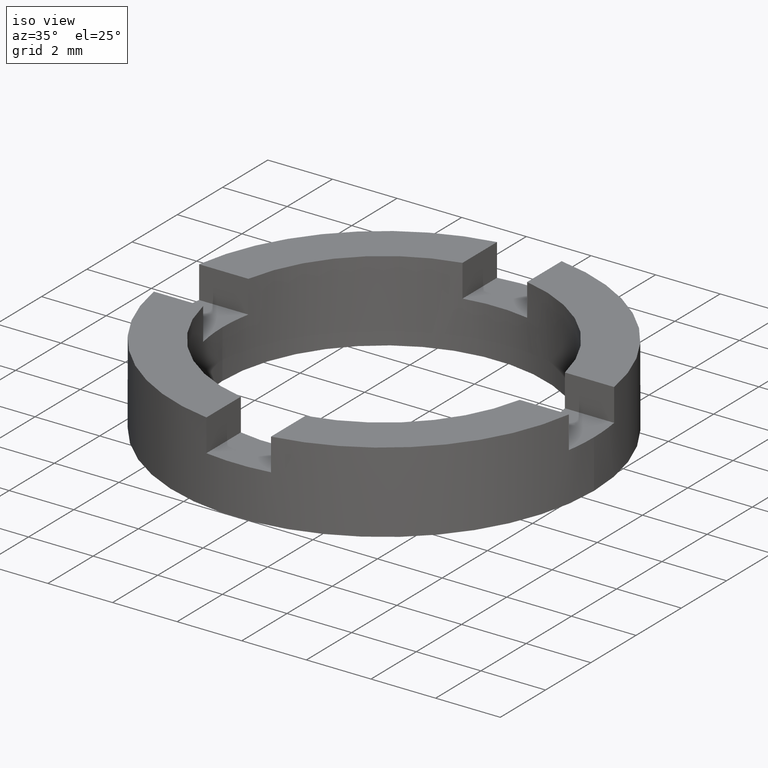
[diagram: clean part render]
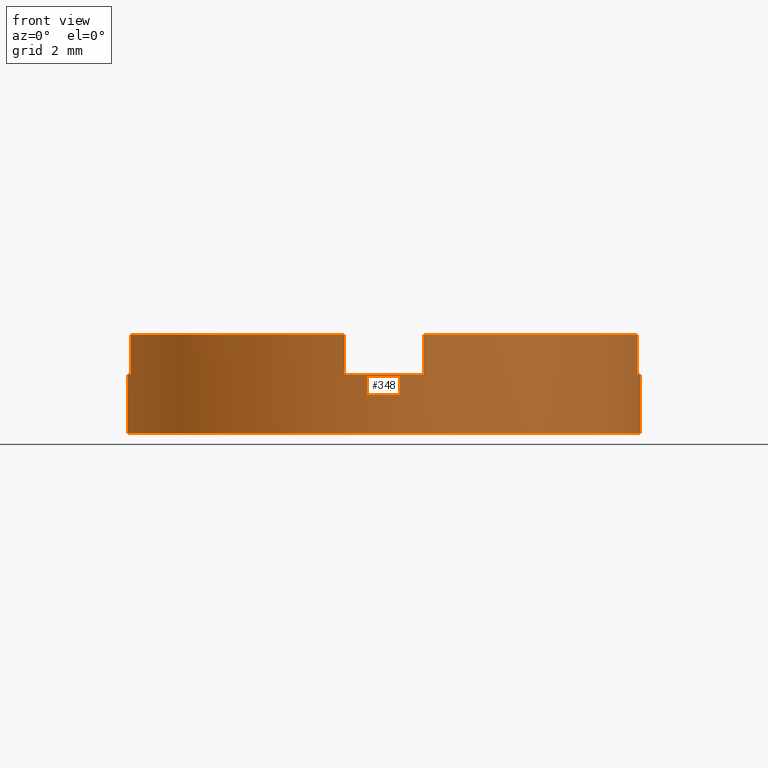
[diagram: tour spotlight — one face highlighted and labeled with its STEP entity id]
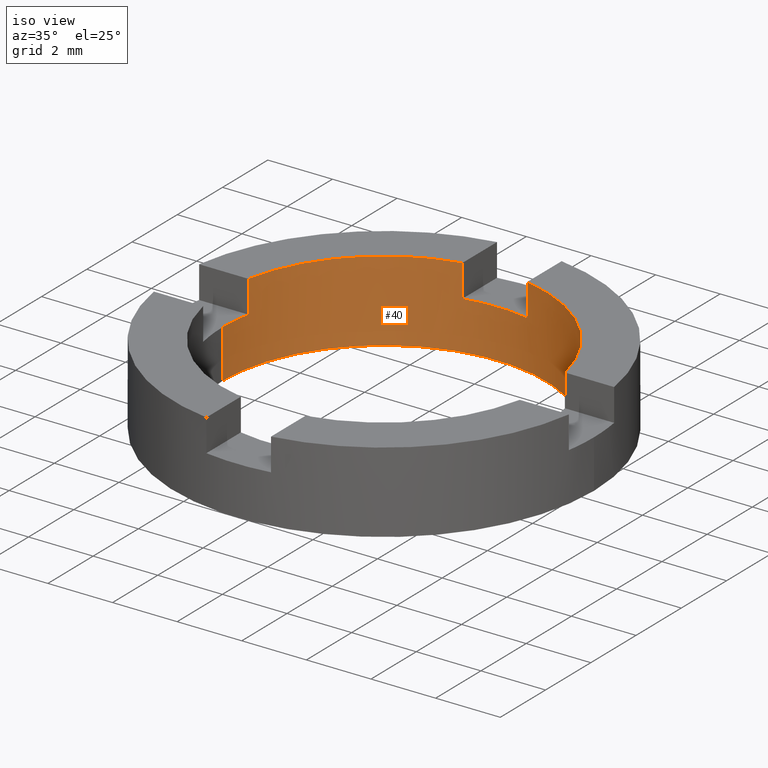
[diagram: tour spotlight — one face highlighted and labeled with its STEP entity id]
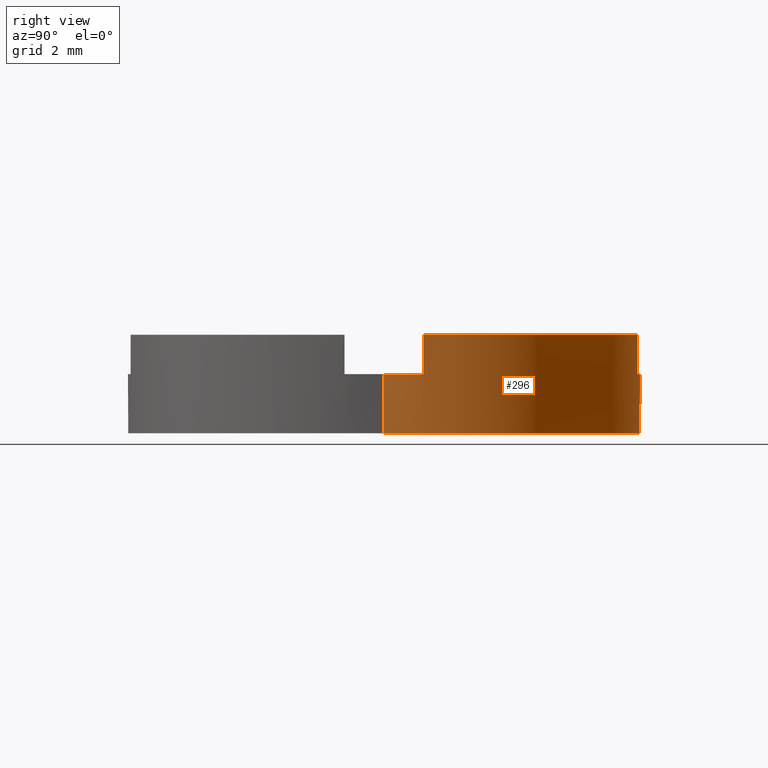
[diagram: tour spotlight — one face highlighted and labeled with its STEP entity id]
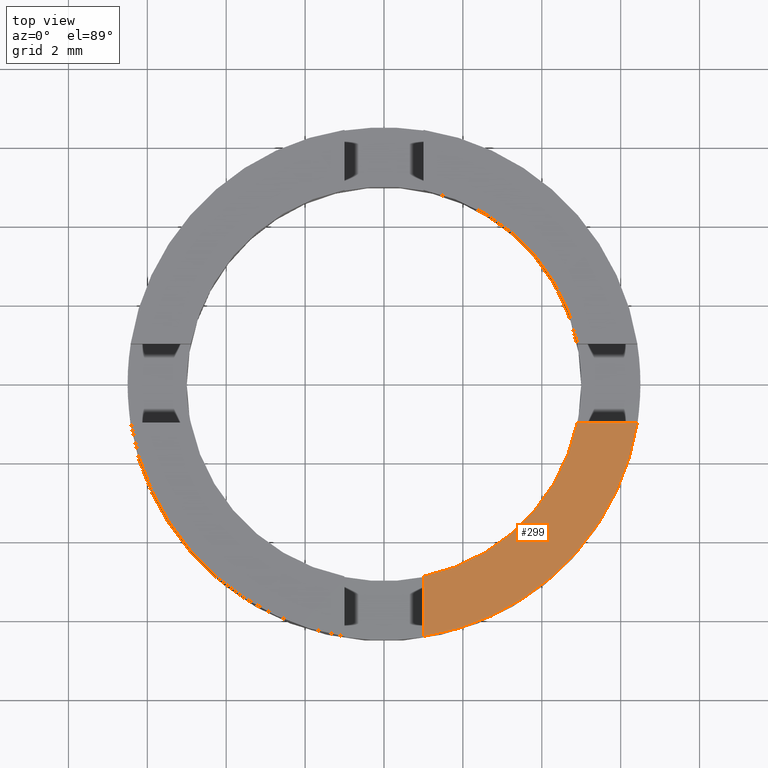
[diagram: tour spotlight — one face highlighted and labeled with its STEP entity id]
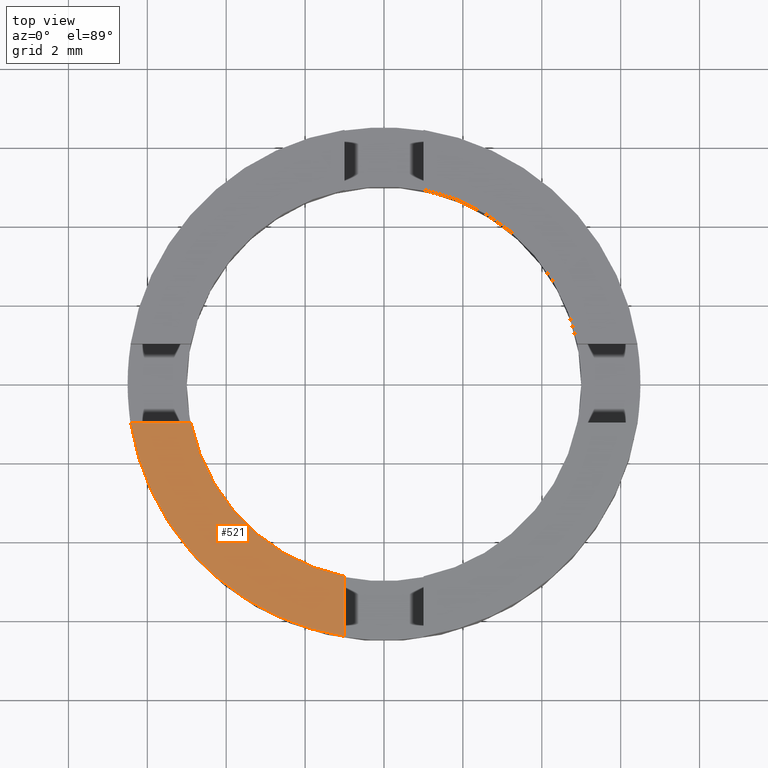
[diagram: tour spotlight — one face highlighted and labeled with its STEP entity id]
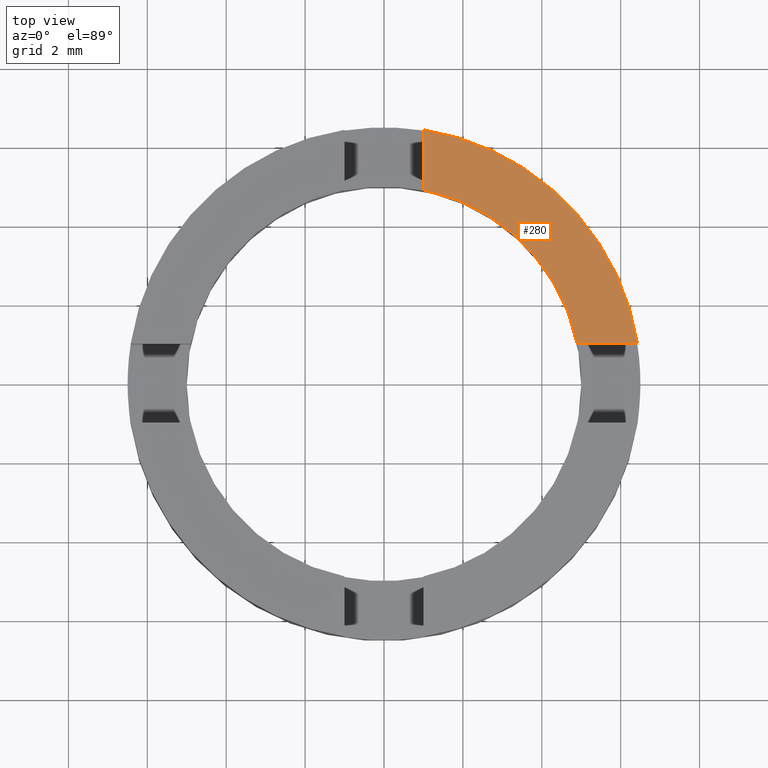
[diagram: tour spotlight — one face highlighted and labeled with its STEP entity id]
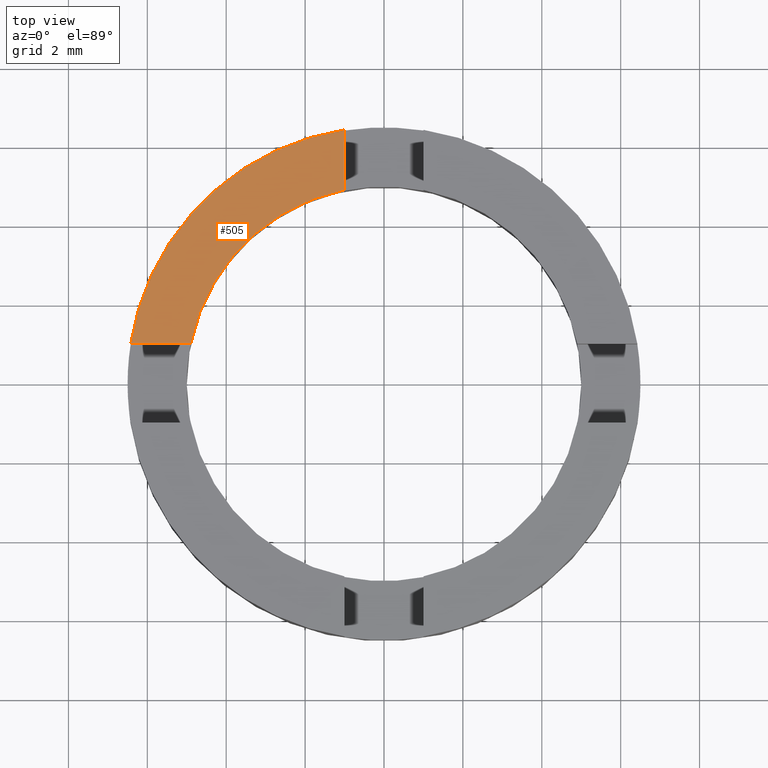
[diagram: tour spotlight — one face highlighted and labeled with its STEP entity id]
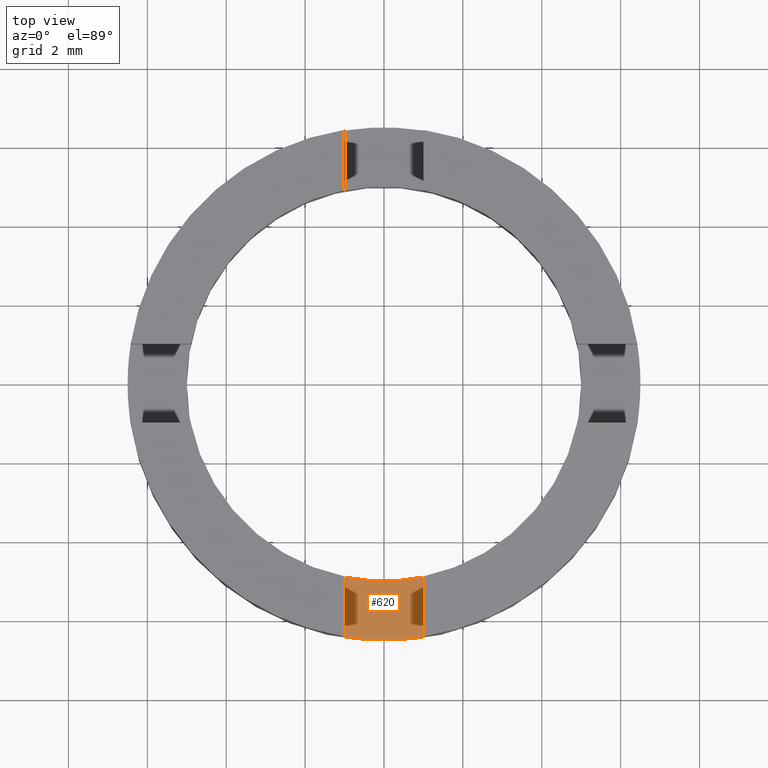
[diagram: tour spotlight — one face highlighted and labeled with its STEP entity id]
A machine part: a face-by-face anatomy tour. The part has 21 B-rep faces; the first image is the clean iso view, then the 8 largest visible faces are spotlighted one at a time (largest first), each with its STEP entity span.

Face 1 — front view, entity #348. In plain terms, the highlighted cylindrical surface (partial cylindrical patch) has radius 6.5 mm, axis along (-0, -0, -1).
Definition (entity closure, byte-faithful):
#17 = CARTESIAN_POINT ( 'NONE',  ( 0.000000000000000000, 0.000000000000000000, 2.500000000000000000 ) ) ;
#21 = EDGE_CURVE ( 'NONE', #359, #278, #650, .T. ) ;
#23 = VERTEX_POINT ( 'NONE', #407 ) ;
#24 = DIRECTION ( 'NONE',  ( -0.000000000000000000, 0.000000000000000000, 1.000000000000000000 ) ) ;
#65 = AXIS2_PLACEMENT_3D ( 'NONE', #442, #687, #593 ) ;
#97 = DIRECTION ( 'NONE',  ( 1.000000000000000000, 0.000000000000000000, 0.000000000000000000 ) ) ;
#108 = EDGE_CURVE ( 'NONE', #23, #130, #350, .T. ) ;
#115 = VERTEX_POINT ( 'NONE', #624 ) ;
#118 = CIRCLE ( 'NONE', #65, 6.500000000000000888 ) ;
#120 = ORIENTED_EDGE ( 'NONE', *, *, #715, .F. ) ;
#121 = LINE ( 'NONE', #782, #329 ) ;
#130 = VERTEX_POINT ( 'NONE', #519 ) ;
#139 = ORIENTED_EDGE ( 'NONE', *, *, #391, .F. ) ;
#162 = CARTESIAN_POINT ( 'NONE',  ( 1.000000000000001332, -6.422616289332564676, 1.500000000000000000 ) ) ;
#187 = VERTEX_POINT ( 'NONE', #767 ) ;
#194 = ORIENTED_EDGE ( 'NONE', *, *, #614, .T. ) ;
#198 = ORIENTED_EDGE ( 'NONE', *, *, #290, .F. ) ;
#204 = EDGE_CURVE ( 'NONE', #279, #23, #584, .T. ) ;
#207 = DIRECTION ( 'NONE',  ( -0.000000000000000000, -0.000000000000000000, 1.000000000000000000 ) ) ;
#223 = CARTESIAN_POINT ( 'NONE',  ( 6.422616289332561124, -1.000000000000025091, 2.500000000000000000 ) ) ;
#242 = CARTESIAN_POINT ( 'NONE',  ( 6.500000000000000888, 7.960204194457796463E-16, 2.500000000000000000 ) ) ;
#245 = CARTESIAN_POINT ( 'NONE',  ( 0.000000000000000000, 0.000000000000000000, 0.000000000000000000 ) ) ;
#256 = AXIS2_PLACEMENT_3D ( 'NONE', #292, #398, #450 ) ;
#257 = EDGE_CURVE ( 'NONE', #638, #675, #121, .T. ) ;
#264 = CARTESIAN_POINT ( 'NONE',  ( 1.000000000000001332, -6.422616289332564676, 1.500000000000000000 ) ) ;
#274 = AXIS2_PLACEMENT_3D ( 'NONE', #671, #24, #723 ) ;
#275 = ORIENTED_EDGE ( 'NONE', *, *, #326, .F. ) ;
#278 = VERTEX_POINT ( 'NONE', #531 ) ;
#279 = VERTEX_POINT ( 'NONE', #386 ) ;
#281 = ORIENTED_EDGE ( 'NONE', *, *, #611, .F. ) ;
#283 = DIRECTION ( 'NONE',  ( -0.000000000000000000, -0.000000000000000000, 1.000000000000000000 ) ) ;
#287 = ORIENTED_EDGE ( 'NONE', *, *, #21, .T. ) ;
#290 = EDGE_CURVE ( 'NONE', #408, #278, #312, .T. ) ;
#292 = CARTESIAN_POINT ( 'NONE',  ( 0.000000000000000000, 0.000000000000000000, 2.500000000000000000 ) ) ;
#312 = LINE ( 'NONE', #242, #610 ) ;
#326 = EDGE_CURVE ( 'NONE', #638, #408, #118, .T. ) ;
#329 = VECTOR ( 'NONE', #735, 1000.000000000000000 ) ;
#342 = LINE ( 'NONE', #162, #572 ) ;
#343 = ORIENTED_EDGE ( 'NONE', *, *, #108, .F. ) ;
#348 = ADVANCED_FACE ( 'NONE', ( #623 ), #365, .T. ) ;
#350 = CIRCLE ( 'NONE', #256, 6.500000000000000888 ) ;
#355 = CIRCLE ( 'NONE', #729, 6.500000000000000888 ) ;
#359 = VERTEX_POINT ( 'NONE', #514 ) ;
#360 = VECTOR ( 'NONE', #477, 1000.000000000000000 ) ;
#365 = CYLINDRICAL_SURFACE ( 'NONE', #455, 6.500000000000000888 ) ;
#385 = VERTEX_POINT ( 'NONE', #264 ) ;
#386 = CARTESIAN_POINT ( 'NONE',  ( -6.422616289332568229, -0.9999999999999770184, 1.500000000000000000 ) ) ;
#388 = VERTEX_POINT ( 'NONE', #774 ) ;
#391 = EDGE_CURVE ( 'NONE', #115, #385, #619, .T. ) ;
#398 = DIRECTION ( 'NONE',  ( 0.000000000000000000, 0.000000000000000000, 1.000000000000000000 ) ) ;
#404 = CARTESIAN_POINT ( 'NONE',  ( 6.422616289332561124, -1.000000000000025091, 1.500000000000000000 ) ) ;
#407 = CARTESIAN_POINT ( 'NONE',  ( -6.422616289332568229, -0.9999999999999770184, 2.500000000000000000 ) ) ;
#408 = VERTEX_POINT ( 'NONE', #469 ) ;
#413 = DIRECTION ( 'NONE',  ( 1.000000000000000000, 0.000000000000000000, 0.000000000000000000 ) ) ;
#430 = CARTESIAN_POINT ( 'NONE',  ( -6.422616289332568229, -0.9999999999999770184, 1.500000000000000000 ) ) ;
#432 = DIRECTION ( 'NONE',  ( -0.000000000000000000, 0.000000000000000000, 1.000000000000000000 ) ) ;
#442 = CARTESIAN_POINT ( 'NONE',  ( 0.000000000000000000, 0.000000000000000000, 1.500000000000000000 ) ) ;
#446 = ORIENTED_EDGE ( 'NONE', *, *, #204, .F. ) ;
#450 = DIRECTION ( 'NONE',  ( 1.000000000000000000, 0.000000000000000000, 0.000000000000000000 ) ) ;
#455 = AXIS2_PLACEMENT_3D ( 'NONE', #734, #730, #780 ) ;
#469 = CARTESIAN_POINT ( 'NONE',  ( 6.500000000000000888, 7.960204194457796463E-16, 1.500000000000000000 ) ) ;
#473 = CARTESIAN_POINT ( 'NONE',  ( -6.500000000000000888, 0.000000000000000000, 2.500000000000000000 ) ) ;
#477 = DIRECTION ( 'NONE',  ( -0.000000000000000000, -0.000000000000000000, 1.000000000000000000 ) ) ;
#479 = CARTESIAN_POINT ( 'NONE',  ( 0.000000000000000000, 0.000000000000000000, 1.500000000000000000 ) ) ;
#498 = AXIS2_PLACEMENT_3D ( 'NONE', #245, #698, #413 ) ;
#514 = CARTESIAN_POINT ( 'NONE',  ( -6.500000000000000888, 0.000000000000000000, 0.000000000000000000 ) ) ;
#519 = CARTESIAN_POINT ( 'NONE',  ( -0.9999999999999986677, -6.422616289332565565, 2.500000000000000000 ) ) ;
#531 = CARTESIAN_POINT ( 'NONE',  ( 6.500000000000000888, 7.960204194457796463E-16, 0.000000000000000000 ) ) ;
#540 = EDGE_LOOP ( 'NONE', ( #198, #275, #622, #281, #674, #139, #194, #343, #446, #120, #549, #287 ) ) ;
#548 = AXIS2_PLACEMENT_3D ( 'NONE', #17, #751, #97 ) ;
#549 = ORIENTED_EDGE ( 'NONE', *, *, #736, .T. ) ;
#566 = CIRCLE ( 'NONE', #548, 6.500000000000000888 ) ;
#572 = VECTOR ( 'NONE', #207, 1000.000000000000000 ) ;
#575 = LINE ( 'NONE', #473, #587 ) ;
#584 = LINE ( 'NONE', #430, #360 ) ;
#587 = VECTOR ( 'NONE', #717, 1000.000000000000000 ) ;
#593 = DIRECTION ( 'NONE',  ( 1.000000000000000000, 0.000000000000000000, 0.000000000000000000 ) ) ;
#597 = DIRECTION ( 'NONE',  ( -0.000000000000000000, -0.000000000000000000, -1.000000000000000000 ) ) ;
#608 = LINE ( 'NONE', #692, #621 ) ;
#610 = VECTOR ( 'NONE', #597, 1000.000000000000000 ) ;
#611 = EDGE_CURVE ( 'NONE', #388, #675, #566, .T. ) ;
#614 = EDGE_CURVE ( 'NONE', #115, #130, #608, .T. ) ;
#619 = CIRCLE ( 'NONE', #274, 6.500000000000000888 ) ;
#621 = VECTOR ( 'NONE', #283, 1000.000000000000000 ) ;
#622 = ORIENTED_EDGE ( 'NONE', *, *, #257, .T. ) ;
#623 = FACE_OUTER_BOUND ( 'NONE', #540, .T. ) ;
#624 = CARTESIAN_POINT ( 'NONE',  ( -0.9999999999999986677, -6.422616289332565565, 1.500000000000000000 ) ) ;
#636 = EDGE_CURVE ( 'NONE', #385, #388, #342, .T. ) ;
#638 = VERTEX_POINT ( 'NONE', #404 ) ;
#650 = CIRCLE ( 'NONE', #498, 6.500000000000000888 ) ;
#671 = CARTESIAN_POINT ( 'NONE',  ( 0.000000000000000000, 0.000000000000000000, 1.500000000000000000 ) ) ;
#674 = ORIENTED_EDGE ( 'NONE', *, *, #636, .F. ) ;
#675 = VERTEX_POINT ( 'NONE', #223 ) ;
#680 = DIRECTION ( 'NONE',  ( 1.000000000000000000, 0.000000000000000000, 0.000000000000000000 ) ) ;
#687 = DIRECTION ( 'NONE',  ( -0.000000000000000000, 0.000000000000000000, 1.000000000000000000 ) ) ;
#692 = CARTESIAN_POINT ( 'NONE',  ( -0.9999999999999986677, -6.422616289332565565, 1.500000000000000000 ) ) ;
#698 = DIRECTION ( 'NONE',  ( 0.000000000000000000, 0.000000000000000000, 1.000000000000000000 ) ) ;
#715 = EDGE_CURVE ( 'NONE', #187, #279, #355, .T. ) ;
#717 = DIRECTION ( 'NONE',  ( -0.000000000000000000, -0.000000000000000000, -1.000000000000000000 ) ) ;
#723 = DIRECTION ( 'NONE',  ( 1.000000000000000000, 0.000000000000000000, 0.000000000000000000 ) ) ;
#729 = AXIS2_PLACEMENT_3D ( 'NONE', #479, #432, #680 ) ;
#730 = DIRECTION ( 'NONE',  ( -0.000000000000000000, -0.000000000000000000, -1.000000000000000000 ) ) ;
#734 = CARTESIAN_POINT ( 'NONE',  ( 0.000000000000000000, 0.000000000000000000, 2.500000000000000000 ) ) ;
#735 = DIRECTION ( 'NONE',  ( -0.000000000000000000, -0.000000000000000000, 1.000000000000000000 ) ) ;
#736 = EDGE_CURVE ( 'NONE', #187, #359, #575, .T. ) ;
#751 = DIRECTION ( 'NONE',  ( 0.000000000000000000, 0.000000000000000000, 1.000000000000000000 ) ) ;
#767 = CARTESIAN_POINT ( 'NONE',  ( -6.500000000000000888, 0.000000000000000000, 1.500000000000000000 ) ) ;
#774 = CARTESIAN_POINT ( 'NONE',  ( 1.000000000000001332, -6.422616289332564676, 2.500000000000000000 ) ) ;
#780 = DIRECTION ( 'NONE',  ( -1.000000000000000000, 0.000000000000000000, 0.000000000000000000 ) ) ;
#782 = CARTESIAN_POINT ( 'NONE',  ( 6.422616289332561124, -1.000000000000025091, 1.500000000000000000 ) ) ;

Face 2 — iso view, entity #40. In plain terms, the highlighted cylindrical surface (partial cylindrical patch) has radius 5 mm, axis along (-0, -0, -1).
Definition (entity closure, byte-faithful):
#3 = ORIENTED_EDGE ( 'NONE', *, *, #43, .T. ) ;
#8 = DIRECTION ( 'NONE',  ( -0.000000000000000000, -0.000000000000000000, -1.000000000000000000 ) ) ;
#10 = CARTESIAN_POINT ( 'NONE',  ( -0.9999999999999986677, 4.898979485566356651, 1.500000000000000000 ) ) ;
#14 = VERTEX_POINT ( 'NONE', #166 ) ;
#16 = DIRECTION ( 'NONE',  ( 0.000000000000000000, 0.000000000000000000, 1.000000000000000000 ) ) ;
#19 = ORIENTED_EDGE ( 'NONE', *, *, #480, .F. ) ;
#33 = ORIENTED_EDGE ( 'NONE', *, *, #478, .F. ) ;
#35 = CARTESIAN_POINT ( 'NONE',  ( -4.898979485566353098, 1.000000000000017097, 1.500000000000000000 ) ) ;
#40 = ADVANCED_FACE ( 'NONE', ( #126 ), #607, .F. ) ;
#43 = EDGE_CURVE ( 'NONE', #133, #14, #374, .T. ) ;
#46 = LINE ( 'NONE', #94, #338 ) ;
#49 = CIRCLE ( 'NONE', #554, 5.000000000000000000 ) ;
#59 = LINE ( 'NONE', #471, #358 ) ;
#63 = VECTOR ( 'NONE', #188, 1000.000000000000000 ) ;
#72 = CIRCLE ( 'NONE', #755, 5.000000000000000000 ) ;
#79 = CARTESIAN_POINT ( 'NONE',  ( 0.000000000000000000, 0.000000000000000000, 1.500000000000000000 ) ) ;
#81 = LINE ( 'NONE', #529, #106 ) ;
#94 = CARTESIAN_POINT ( 'NONE',  ( 5.000000000000000000, 6.123233995736766282E-16, 2.500000000000000000 ) ) ;
#95 = VERTEX_POINT ( 'NONE', #462 ) ;
#98 = LINE ( 'NONE', #553, #320 ) ;
#101 = CIRCLE ( 'NONE', #744, 5.000000000000000000 ) ;
#102 = ORIENTED_EDGE ( 'NONE', *, *, #456, .F. ) ;
#103 = VECTOR ( 'NONE', #172, 1000.000000000000000 ) ;
#106 = VECTOR ( 'NONE', #384, 1000.000000000000000 ) ;
#126 = FACE_OUTER_BOUND ( 'NONE', #716, .T. ) ;
#129 = ORIENTED_EDGE ( 'NONE', *, *, #447, .F. ) ;
#133 = VERTEX_POINT ( 'NONE', #230 ) ;
#138 = CARTESIAN_POINT ( 'NONE',  ( 1.000000000000001332, 4.898979485566355763, 1.500000000000000000 ) ) ;
#153 = VERTEX_POINT ( 'NONE', #362 ) ;
#166 = CARTESIAN_POINT ( 'NONE',  ( -0.9999999999999986677, 4.898979485566356651, 2.500000000000000000 ) ) ;
#170 = DIRECTION ( 'NONE',  ( 1.000000000000000000, 0.000000000000000000, 0.000000000000000000 ) ) ;
#172 = DIRECTION ( 'NONE',  ( -0.000000000000000000, -0.000000000000000000, 1.000000000000000000 ) ) ;
#182 = EDGE_CURVE ( 'NONE', #192, #678, #354, .T. ) ;
#188 = DIRECTION ( 'NONE',  ( -0.000000000000000000, -0.000000000000000000, 1.000000000000000000 ) ) ;
#192 = VERTEX_POINT ( 'NONE', #268 ) ;
#205 = CARTESIAN_POINT ( 'NONE',  ( 4.898979485566360204, 0.9999999999999806821, 1.500000000000000000 ) ) ;
#206 = EDGE_CURVE ( 'NONE', #14, #625, #604, .T. ) ;
#221 = CARTESIAN_POINT ( 'NONE',  ( 5.000000000000000000, 6.123233995736766282E-16, 0.000000000000000000 ) ) ;
#230 = CARTESIAN_POINT ( 'NONE',  ( -0.9999999999999986677, 4.898979485566356651, 1.500000000000000000 ) ) ;
#255 = CARTESIAN_POINT ( 'NONE',  ( -4.898979485566353098, 1.000000000000017097, 2.500000000000000000 ) ) ;
#266 = CARTESIAN_POINT ( 'NONE',  ( 1.000000000000001332, 4.898979485566355763, 2.500000000000000000 ) ) ;
#268 = CARTESIAN_POINT ( 'NONE',  ( 1.000000000000001332, 4.898979485566355763, 1.500000000000000000 ) ) ;
#300 = CARTESIAN_POINT ( 'NONE',  ( 0.000000000000000000, 0.000000000000000000, 1.500000000000000000 ) ) ;
#305 = EDGE_CURVE ( 'NONE', #637, #696, #81, .T. ) ;
#319 = DIRECTION ( 'NONE',  ( 1.000000000000000000, 0.000000000000000000, 0.000000000000000000 ) ) ;
#320 = VECTOR ( 'NONE', #8, 1000.000000000000000 ) ;
#321 = DIRECTION ( 'NONE',  ( -0.000000000000000000, -0.000000000000000000, 1.000000000000000000 ) ) ;
#324 = AXIS2_PLACEMENT_3D ( 'NONE', #648, #703, #748 ) ;
#338 = VECTOR ( 'NONE', #508, 1000.000000000000000 ) ;
#341 = ORIENTED_EDGE ( 'NONE', *, *, #429, .T. ) ;
#349 = ORIENTED_EDGE ( 'NONE', *, *, #182, .F. ) ;
#352 = CIRCLE ( 'NONE', #535, 5.000000000000000000 ) ;
#354 = LINE ( 'NONE', #138, #63 ) ;
#358 = VECTOR ( 'NONE', #321, 1000.000000000000000 ) ;
#362 = CARTESIAN_POINT ( 'NONE',  ( -5.000000000000000000, 0.000000000000000000, 1.500000000000000000 ) ) ;
#374 = LINE ( 'NONE', #10, #103 ) ;
#384 = DIRECTION ( 'NONE',  ( -0.000000000000000000, -0.000000000000000000, 1.000000000000000000 ) ) ;
#390 = VERTEX_POINT ( 'NONE', #221 ) ;
#403 = EDGE_CURVE ( 'NONE', #637, #95, #578, .T. ) ;
#406 = ORIENTED_EDGE ( 'NONE', *, *, #403, .F. ) ;
#418 = DIRECTION ( 'NONE',  ( 0.000000000000000000, -0.000000000000000000, -1.000000000000000000 ) ) ;
#426 = DIRECTION ( 'NONE',  ( 1.000000000000000000, 8.881784197001252323E-15, 0.000000000000000000 ) ) ;
#427 = CARTESIAN_POINT ( 'NONE',  ( 0.000000000000000000, 0.000000000000000000, 2.500000000000000000 ) ) ;
#429 = EDGE_CURVE ( 'NONE', #153, #758, #98, .T. ) ;
#438 = ORIENTED_EDGE ( 'NONE', *, *, #681, .T. ) ;
#447 = EDGE_CURVE ( 'NONE', #390, #758, #72, .T. ) ;
#454 = DIRECTION ( 'NONE',  ( 1.000000000000000000, 0.000000000000000000, 0.000000000000000000 ) ) ;
#456 = EDGE_CURVE ( 'NONE', #153, #709, #101, .T. ) ;
#462 = CARTESIAN_POINT ( 'NONE',  ( 5.000000000000000000, 6.123233995736766282E-16, 1.500000000000000000 ) ) ;
#471 = CARTESIAN_POINT ( 'NONE',  ( -4.898979485566353098, 1.000000000000017097, 1.500000000000000000 ) ) ;
#478 = EDGE_CURVE ( 'NONE', #95, #390, #46, .T. ) ;
#480 = EDGE_CURVE ( 'NONE', #133, #192, #49, .T. ) ;
#490 = ORIENTED_EDGE ( 'NONE', *, *, #683, .F. ) ;
#508 = DIRECTION ( 'NONE',  ( -0.000000000000000000, -0.000000000000000000, -1.000000000000000000 ) ) ;
#516 = DIRECTION ( 'NONE',  ( 1.000000000000000000, 0.000000000000000000, 0.000000000000000000 ) ) ;
#518 = DIRECTION ( 'NONE',  ( 0.000000000000000000, -0.000000000000000000, -1.000000000000000000 ) ) ;
#520 = CARTESIAN_POINT ( 'NONE',  ( 4.898979485566360204, 0.9999999999999806821, 2.500000000000000000 ) ) ;
#523 = DIRECTION ( 'NONE',  ( 0.000000000000000000, 0.000000000000000000, 1.000000000000000000 ) ) ;
#529 = CARTESIAN_POINT ( 'NONE',  ( 4.898979485566360204, 0.9999999999999806821, 1.500000000000000000 ) ) ;
#535 = AXIS2_PLACEMENT_3D ( 'NONE', #427, #769, #516 ) ;
#550 = DIRECTION ( 'NONE',  ( 0.000000000000000000, -0.000000000000000000, -1.000000000000000000 ) ) ;
#553 = CARTESIAN_POINT ( 'NONE',  ( -5.000000000000000000, 0.000000000000000000, 2.500000000000000000 ) ) ;
#554 = AXIS2_PLACEMENT_3D ( 'NONE', #300, #550, #660 ) ;
#578 = CIRCLE ( 'NONE', #686, 5.000000000000000000 ) ;
#604 = CIRCLE ( 'NONE', #634, 5.000000000000000000 ) ;
#607 = CYLINDRICAL_SURFACE ( 'NONE', #324, 5.000000000000000000 ) ;
#625 = VERTEX_POINT ( 'NONE', #255 ) ;
#634 = AXIS2_PLACEMENT_3D ( 'NONE', #682, #523, #454 ) ;
#637 = VERTEX_POINT ( 'NONE', #205 ) ;
#648 = CARTESIAN_POINT ( 'NONE',  ( 0.000000000000000000, 0.000000000000000000, 2.500000000000000000 ) ) ;
#660 = DIRECTION ( 'NONE',  ( 1.000000000000000000, 0.000000000000000000, 0.000000000000000000 ) ) ;
#677 = CARTESIAN_POINT ( 'NONE',  ( -5.000000000000000000, 0.000000000000000000, 0.000000000000000000 ) ) ;
#678 = VERTEX_POINT ( 'NONE', #266 ) ;
#681 = EDGE_CURVE ( 'NONE', #696, #678, #352, .T. ) ;
#682 = CARTESIAN_POINT ( 'NONE',  ( 0.000000000000000000, 0.000000000000000000, 2.500000000000000000 ) ) ;
#683 = EDGE_CURVE ( 'NONE', #709, #625, #59, .T. ) ;
#686 = AXIS2_PLACEMENT_3D ( 'NONE', #766, #518, #426 ) ;
#696 = VERTEX_POINT ( 'NONE', #520 ) ;
#699 = ORIENTED_EDGE ( 'NONE', *, *, #305, .T. ) ;
#703 = DIRECTION ( 'NONE',  ( -0.000000000000000000, -0.000000000000000000, -1.000000000000000000 ) ) ;
#706 = CARTESIAN_POINT ( 'NONE',  ( 0.000000000000000000, 0.000000000000000000, 0.000000000000000000 ) ) ;
#709 = VERTEX_POINT ( 'NONE', #35 ) ;
#716 = EDGE_LOOP ( 'NONE', ( #33, #406, #699, #438, #349, #19, #3, #756, #490, #102, #341, #129 ) ) ;
#744 = AXIS2_PLACEMENT_3D ( 'NONE', #79, #418, #170 ) ;
#748 = DIRECTION ( 'NONE',  ( -1.000000000000000000, 0.000000000000000000, 0.000000000000000000 ) ) ;
#755 = AXIS2_PLACEMENT_3D ( 'NONE', #706, #16, #319 ) ;
#756 = ORIENTED_EDGE ( 'NONE', *, *, #206, .T. ) ;
#758 = VERTEX_POINT ( 'NONE', #677 ) ;
#766 = CARTESIAN_POINT ( 'NONE',  ( 0.000000000000000000, 0.000000000000000000, 1.500000000000000000 ) ) ;
#769 = DIRECTION ( 'NONE',  ( 0.000000000000000000, 0.000000000000000000, 1.000000000000000000 ) ) ;

Face 3 — right view, entity #296. In plain terms, the highlighted cylindrical surface (partial cylindrical patch) has radius 6.5 mm, axis along (-0, -0, -1).
Definition (entity closure, byte-faithful):
#9 = CARTESIAN_POINT ( 'NONE',  ( 6.422616289332569117, 0.9999999999999749090, 1.500000000000000000 ) ) ;
#12 = CARTESIAN_POINT ( 'NONE',  ( 1.000000000000001332, 6.422616289332564676, 1.500000000000000000 ) ) ;
#13 = DIRECTION ( 'NONE',  ( 0.000000000000000000, 0.000000000000000000, 1.000000000000000000 ) ) ;
#26 = DIRECTION ( 'NONE',  ( -0.000000000000000000, 0.000000000000000000, 1.000000000000000000 ) ) ;
#29 = ORIENTED_EDGE ( 'NONE', *, *, #111, .T. ) ;
#34 = EDGE_CURVE ( 'NONE', #606, #284, #644, .T. ) ;
#53 = LINE ( 'NONE', #9, #602 ) ;
#73 = VECTOR ( 'NONE', #536, 1000.000000000000000 ) ;
#82 = EDGE_CURVE ( 'NONE', #380, #606, #633, .T. ) ;
#96 = VECTOR ( 'NONE', #252, 1000.000000000000000 ) ;
#100 = LINE ( 'NONE', #492, #73 ) ;
#111 = EDGE_CURVE ( 'NONE', #151, #284, #100, .T. ) ;
#112 = ORIENTED_EDGE ( 'NONE', *, *, #290, .T. ) ;
#114 = DIRECTION ( 'NONE',  ( 1.000000000000000000, 0.000000000000000000, 0.000000000000000000 ) ) ;
#117 = VERTEX_POINT ( 'NONE', #693 ) ;
#128 = CARTESIAN_POINT ( 'NONE',  ( 0.000000000000000000, 0.000000000000000000, 1.500000000000000000 ) ) ;
#146 = DIRECTION ( 'NONE',  ( -0.000000000000000000, 0.000000000000000000, 1.000000000000000000 ) ) ;
#151 = VERTEX_POINT ( 'NONE', #272 ) ;
#156 = DIRECTION ( 'NONE',  ( -1.000000000000000000, 0.000000000000000000, 0.000000000000000000 ) ) ;
#164 = CARTESIAN_POINT ( 'NONE',  ( 1.000000000000001332, 6.422616289332564676, 1.500000000000000000 ) ) ;
#171 = DIRECTION ( 'NONE',  ( -0.000000000000000000, -0.000000000000000000, 1.000000000000000000 ) ) ;
#186 = DIRECTION ( 'NONE',  ( 1.000000000000000000, 0.000000000000000000, 0.000000000000000000 ) ) ;
#187 = VERTEX_POINT ( 'NONE', #767 ) ;
#191 = AXIS2_PLACEMENT_3D ( 'NONE', #250, #765, #259 ) ;
#197 = ORIENTED_EDGE ( 'NONE', *, *, #243, .F. ) ;
#213 = CARTESIAN_POINT ( 'NONE',  ( -0.9999999999999986677, 6.422616289332565565, 1.500000000000000000 ) ) ;
#224 = CARTESIAN_POINT ( 'NONE',  ( 0.000000000000000000, 0.000000000000000000, 1.500000000000000000 ) ) ;
#232 = AXIS2_PLACEMENT_3D ( 'NONE', #128, #26, #186 ) ;
#236 = CARTESIAN_POINT ( 'NONE',  ( -0.9999999999999986677, 6.422616289332565565, 2.500000000000000000 ) ) ;
#242 = CARTESIAN_POINT ( 'NONE',  ( 6.500000000000000888, 7.960204194457796463E-16, 2.500000000000000000 ) ) ;
#243 = EDGE_CURVE ( 'NONE', #408, #117, #371, .T. ) ;
#244 = DIRECTION ( 'NONE',  ( -0.000000000000000000, -0.000000000000000000, 1.000000000000000000 ) ) ;
#248 = DIRECTION ( 'NONE',  ( 1.000000000000000000, 0.000000000000000000, 0.000000000000000000 ) ) ;
#250 = CARTESIAN_POINT ( 'NONE',  ( 0.000000000000000000, 0.000000000000000000, 0.000000000000000000 ) ) ;
#252 = DIRECTION ( 'NONE',  ( -0.000000000000000000, -0.000000000000000000, 1.000000000000000000 ) ) ;
#259 = DIRECTION ( 'NONE',  ( 1.000000000000000000, 0.000000000000000000, 0.000000000000000000 ) ) ;
#262 = ORIENTED_EDGE ( 'NONE', *, *, #725, .F. ) ;
#269 = DIRECTION ( 'NONE',  ( 1.000000000000000000, 0.000000000000000000, 0.000000000000000000 ) ) ;
#272 = CARTESIAN_POINT ( 'NONE',  ( -6.422616289332562012, 1.000000000000023093, 1.500000000000000000 ) ) ;
#278 = VERTEX_POINT ( 'NONE', #531 ) ;
#282 = AXIS2_PLACEMENT_3D ( 'NONE', #366, #146, #269 ) ;
#284 = VERTEX_POINT ( 'NONE', #530 ) ;
#289 = ORIENTED_EDGE ( 'NONE', *, *, #513, .F. ) ;
#290 = EDGE_CURVE ( 'NONE', #408, #278, #312, .T. ) ;
#296 = ADVANCED_FACE ( 'NONE', ( #591 ), #580, .T. ) ;
#302 = VECTOR ( 'NONE', #244, 1000.000000000000000 ) ;
#312 = LINE ( 'NONE', #242, #610 ) ;
#334 = CARTESIAN_POINT ( 'NONE',  ( -0.9999999999999986677, 6.422616289332565565, 1.500000000000000000 ) ) ;
#347 = CIRCLE ( 'NONE', #487, 6.500000000000000888 ) ;
#359 = VERTEX_POINT ( 'NONE', #514 ) ;
#364 = ORIENTED_EDGE ( 'NONE', *, *, #685, .F. ) ;
#366 = CARTESIAN_POINT ( 'NONE',  ( 0.000000000000000000, 0.000000000000000000, 1.500000000000000000 ) ) ;
#371 = CIRCLE ( 'NONE', #282, 6.500000000000000888 ) ;
#373 = ORIENTED_EDGE ( 'NONE', *, *, #82, .F. ) ;
#380 = VERTEX_POINT ( 'NONE', #334 ) ;
#408 = VERTEX_POINT ( 'NONE', #469 ) ;
#412 = ORIENTED_EDGE ( 'NONE', *, *, #522, .T. ) ;
#415 = CARTESIAN_POINT ( 'NONE',  ( 1.000000000000001332, 6.422616289332564676, 2.500000000000000000 ) ) ;
#421 = AXIS2_PLACEMENT_3D ( 'NONE', #224, #476, #559 ) ;
#448 = ORIENTED_EDGE ( 'NONE', *, *, #34, .F. ) ;
#451 = VERTEX_POINT ( 'NONE', #12 ) ;
#465 = EDGE_CURVE ( 'NONE', #278, #359, #617, .T. ) ;
#466 = CARTESIAN_POINT ( 'NONE',  ( 0.000000000000000000, 0.000000000000000000, 2.500000000000000000 ) ) ;
#469 = CARTESIAN_POINT ( 'NONE',  ( 6.500000000000000888, 7.960204194457796463E-16, 1.500000000000000000 ) ) ;
#473 = CARTESIAN_POINT ( 'NONE',  ( -6.500000000000000888, 0.000000000000000000, 2.500000000000000000 ) ) ;
#476 = DIRECTION ( 'NONE',  ( -0.000000000000000000, 0.000000000000000000, 1.000000000000000000 ) ) ;
#487 = AXIS2_PLACEMENT_3D ( 'NONE', #466, #13, #114 ) ;
#491 = VERTEX_POINT ( 'NONE', #415 ) ;
#492 = CARTESIAN_POINT ( 'NONE',  ( -6.422616289332562012, 1.000000000000023093, 1.500000000000000000 ) ) ;
#513 = EDGE_CURVE ( 'NONE', #708, #491, #347, .T. ) ;
#514 = CARTESIAN_POINT ( 'NONE',  ( -6.500000000000000888, 0.000000000000000000, 0.000000000000000000 ) ) ;
#522 = EDGE_CURVE ( 'NONE', #451, #491, #570, .T. ) ;
#530 = CARTESIAN_POINT ( 'NONE',  ( -6.422616289332562012, 1.000000000000023093, 2.500000000000000000 ) ) ;
#531 = CARTESIAN_POINT ( 'NONE',  ( 6.500000000000000888, 7.960204194457796463E-16, 0.000000000000000000 ) ) ;
#534 = ORIENTED_EDGE ( 'NONE', *, *, #736, .F. ) ;
#536 = DIRECTION ( 'NONE',  ( -0.000000000000000000, -0.000000000000000000, 1.000000000000000000 ) ) ;
#537 = ORIENTED_EDGE ( 'NONE', *, *, #538, .F. ) ;
#538 = EDGE_CURVE ( 'NONE', #117, #708, #53, .T. ) ;
#542 = CARTESIAN_POINT ( 'NONE',  ( 0.000000000000000000, 0.000000000000000000, 2.500000000000000000 ) ) ;
#543 = ORIENTED_EDGE ( 'NONE', *, *, #465, .T. ) ;
#559 = DIRECTION ( 'NONE',  ( 1.000000000000000000, 0.000000000000000000, 0.000000000000000000 ) ) ;
#563 = CARTESIAN_POINT ( 'NONE',  ( 6.422616289332569117, 0.9999999999999749090, 2.500000000000000000 ) ) ;
#565 = CIRCLE ( 'NONE', #232, 6.500000000000000888 ) ;
#570 = LINE ( 'NONE', #164, #302 ) ;
#575 = LINE ( 'NONE', #473, #587 ) ;
#580 = CYLINDRICAL_SURFACE ( 'NONE', #714, 6.500000000000000888 ) ;
#587 = VECTOR ( 'NONE', #717, 1000.000000000000000 ) ;
#591 = FACE_OUTER_BOUND ( 'NONE', #676, .T. ) ;
#597 = DIRECTION ( 'NONE',  ( -0.000000000000000000, -0.000000000000000000, -1.000000000000000000 ) ) ;
#602 = VECTOR ( 'NONE', #171, 1000.000000000000000 ) ;
#606 = VERTEX_POINT ( 'NONE', #236 ) ;
#610 = VECTOR ( 'NONE', #597, 1000.000000000000000 ) ;
#613 = CIRCLE ( 'NONE', #421, 6.500000000000000888 ) ;
#617 = CIRCLE ( 'NONE', #191, 6.500000000000000888 ) ;
#633 = LINE ( 'NONE', #213, #96 ) ;
#644 = CIRCLE ( 'NONE', #770, 6.500000000000000888 ) ;
#676 = EDGE_LOOP ( 'NONE', ( #197, #112, #543, #534, #364, #29, #448, #373, #262, #412, #289, #537 ) ) ;
#685 = EDGE_CURVE ( 'NONE', #151, #187, #565, .T. ) ;
#689 = DIRECTION ( 'NONE',  ( -0.000000000000000000, -0.000000000000000000, -1.000000000000000000 ) ) ;
#693 = CARTESIAN_POINT ( 'NONE',  ( 6.422616289332569117, 0.9999999999999749090, 1.500000000000000000 ) ) ;
#708 = VERTEX_POINT ( 'NONE', #563 ) ;
#714 = AXIS2_PLACEMENT_3D ( 'NONE', #781, #689, #156 ) ;
#717 = DIRECTION ( 'NONE',  ( -0.000000000000000000, -0.000000000000000000, -1.000000000000000000 ) ) ;
#725 = EDGE_CURVE ( 'NONE', #451, #380, #613, .T. ) ;
#736 = EDGE_CURVE ( 'NONE', #187, #359, #575, .T. ) ;
#741 = DIRECTION ( 'NONE',  ( 0.000000000000000000, 0.000000000000000000, 1.000000000000000000 ) ) ;
#765 = DIRECTION ( 'NONE',  ( 0.000000000000000000, 0.000000000000000000, 1.000000000000000000 ) ) ;
#767 = CARTESIAN_POINT ( 'NONE',  ( -6.500000000000000888, 0.000000000000000000, 1.500000000000000000 ) ) ;
#770 = AXIS2_PLACEMENT_3D ( 'NONE', #542, #741, #248 ) ;
#781 = CARTESIAN_POINT ( 'NONE',  ( 0.000000000000000000, 0.000000000000000000, 2.500000000000000000 ) ) ;

Face 4 — top view, entity #299. In plain terms, the highlighted planar face has unit normal (0, 0, 1).
Definition (entity closure, byte-faithful):
#17 = CARTESIAN_POINT ( 'NONE',  ( 0.000000000000000000, 0.000000000000000000, 2.500000000000000000 ) ) ;
#44 = DIRECTION ( 'NONE',  ( 0.000000000000000000, 0.000000000000000000, 1.000000000000000000 ) ) ;
#67 = VECTOR ( 'NONE', #512, 1000.000000000000000 ) ;
#84 = VERTEX_POINT ( 'NONE', #303 ) ;
#97 = DIRECTION ( 'NONE',  ( 1.000000000000000000, 0.000000000000000000, 0.000000000000000000 ) ) ;
#131 = VERTEX_POINT ( 'NONE', #227 ) ;
#141 = ORIENTED_EDGE ( 'NONE', *, *, #771, .F. ) ;
#202 = PLANE ( 'NONE',  #267 ) ;
#218 = CARTESIAN_POINT ( 'NONE',  ( 0.000000000000000000, 0.000000000000000000, 2.500000000000000000 ) ) ;
#220 = DIRECTION ( 'NONE',  ( 1.000000000000000000, -3.736327486719276758E-15, 0.000000000000000000 ) ) ;
#223 = CARTESIAN_POINT ( 'NONE',  ( 6.422616289332561124, -1.000000000000025091, 2.500000000000000000 ) ) ;
#227 = CARTESIAN_POINT ( 'NONE',  ( 1.000000000000001332, -4.898979485566355763, 2.500000000000000000 ) ) ;
#239 = CARTESIAN_POINT ( 'NONE',  ( 0.000000000000000000, 0.000000000000000000, 2.500000000000000000 ) ) ;
#260 = DIRECTION ( 'NONE',  ( 0.000000000000000000, 0.000000000000000000, 1.000000000000000000 ) ) ;
#267 = AXIS2_PLACEMENT_3D ( 'NONE', #239, #44, #286 ) ;
#286 = DIRECTION ( 'NONE',  ( 1.000000000000000000, 0.000000000000000000, -0.000000000000000000 ) ) ;
#299 = ADVANCED_FACE ( 'NONE', ( #583 ), #202, .T. ) ;
#303 = CARTESIAN_POINT ( 'NONE',  ( 4.898979485566353098, -1.000000000000019318, 2.500000000000000000 ) ) ;
#307 = CARTESIAN_POINT ( 'NONE',  ( 1.000000000000001332, 0.000000000000000000, 2.500000000000000000 ) ) ;
#318 = LINE ( 'NONE', #307, #67 ) ;
#328 = CIRCLE ( 'NONE', #556, 5.000000000000000000 ) ;
#388 = VERTEX_POINT ( 'NONE', #774 ) ;
#414 = EDGE_CURVE ( 'NONE', #388, #131, #318, .T. ) ;
#512 = DIRECTION ( 'NONE',  ( 0.000000000000000000, 1.000000000000000000, -0.000000000000000000 ) ) ;
#548 = AXIS2_PLACEMENT_3D ( 'NONE', #17, #751, #97 ) ;
#556 = AXIS2_PLACEMENT_3D ( 'NONE', #218, #260, #778 ) ;
#566 = CIRCLE ( 'NONE', #548, 6.500000000000000888 ) ;
#577 = LINE ( 'NONE', #764, #579 ) ;
#579 = VECTOR ( 'NONE', #220, 1000.000000000000000 ) ;
#583 = FACE_OUTER_BOUND ( 'NONE', #669, .T. ) ;
#611 = EDGE_CURVE ( 'NONE', #388, #675, #566, .T. ) ;
#641 = ORIENTED_EDGE ( 'NONE', *, *, #704, .F. ) ;
#643 = ORIENTED_EDGE ( 'NONE', *, *, #611, .T. ) ;
#669 = EDGE_LOOP ( 'NONE', ( #141, #641, #707, #643 ) ) ;
#675 = VERTEX_POINT ( 'NONE', #223 ) ;
#704 = EDGE_CURVE ( 'NONE', #131, #84, #328, .T. ) ;
#707 = ORIENTED_EDGE ( 'NONE', *, *, #414, .F. ) ;
#751 = DIRECTION ( 'NONE',  ( 0.000000000000000000, 0.000000000000000000, 1.000000000000000000 ) ) ;
#764 = CARTESIAN_POINT ( 'NONE',  ( -3.736327486719281491E-15, -1.000000000000001110, 2.500000000000000000 ) ) ;
#771 = EDGE_CURVE ( 'NONE', #84, #675, #577, .T. ) ;
#774 = CARTESIAN_POINT ( 'NONE',  ( 1.000000000000001332, -6.422616289332564676, 2.500000000000000000 ) ) ;
#778 = DIRECTION ( 'NONE',  ( 1.000000000000000000, 0.000000000000000000, 0.000000000000000000 ) ) ;

Face 5 — top view, entity #521. In plain terms, the highlighted planar face has unit normal (0, 0, 1).
Definition (entity closure, byte-faithful):
#23 = VERTEX_POINT ( 'NONE', #407 ) ;
#30 = ORIENTED_EDGE ( 'NONE', *, *, #147, .T. ) ;
#87 = FACE_OUTER_BOUND ( 'NONE', #356, .T. ) ;
#108 = EDGE_CURVE ( 'NONE', #23, #130, #350, .T. ) ;
#130 = VERTEX_POINT ( 'NONE', #519 ) ;
#147 = EDGE_CURVE ( 'NONE', #130, #195, #595, .T. ) ;
#155 = ORIENTED_EDGE ( 'NONE', *, *, #705, .F. ) ;
#158 = EDGE_CURVE ( 'NONE', #496, #195, #315, .T. ) ;
#189 = CARTESIAN_POINT ( 'NONE',  ( -3.736327486719281491E-15, -1.000000000000001110, 2.500000000000000000 ) ) ;
#193 = DIRECTION ( 'NONE',  ( 0.000000000000000000, 0.000000000000000000, 1.000000000000000000 ) ) ;
#195 = VERTEX_POINT ( 'NONE', #727 ) ;
#222 = CARTESIAN_POINT ( 'NONE',  ( -0.9999999999999986677, 0.000000000000000000, 2.500000000000000000 ) ) ;
#246 = DIRECTION ( 'NONE',  ( 0.000000000000000000, 0.000000000000000000, 1.000000000000000000 ) ) ;
#256 = AXIS2_PLACEMENT_3D ( 'NONE', #292, #398, #450 ) ;
#292 = CARTESIAN_POINT ( 'NONE',  ( 0.000000000000000000, 0.000000000000000000, 2.500000000000000000 ) ) ;
#311 = VECTOR ( 'NONE', #726, 1000.000000000000000 ) ;
#315 = CIRCLE ( 'NONE', #351, 5.000000000000000000 ) ;
#331 = LINE ( 'NONE', #189, #311 ) ;
#335 = DIRECTION ( 'NONE',  ( 1.000000000000000000, 0.000000000000000000, 0.000000000000000000 ) ) ;
#350 = CIRCLE ( 'NONE', #256, 6.500000000000000888 ) ;
#351 = AXIS2_PLACEMENT_3D ( 'NONE', #776, #193, #335 ) ;
#356 = EDGE_LOOP ( 'NONE', ( #155, #382, #30, #544 ) ) ;
#376 = VECTOR ( 'NONE', #724, 1000.000000000000000 ) ;
#382 = ORIENTED_EDGE ( 'NONE', *, *, #108, .T. ) ;
#398 = DIRECTION ( 'NONE',  ( 0.000000000000000000, 0.000000000000000000, 1.000000000000000000 ) ) ;
#407 = CARTESIAN_POINT ( 'NONE',  ( -6.422616289332568229, -0.9999999999999770184, 2.500000000000000000 ) ) ;
#450 = DIRECTION ( 'NONE',  ( 1.000000000000000000, 0.000000000000000000, 0.000000000000000000 ) ) ;
#457 = CARTESIAN_POINT ( 'NONE',  ( 0.000000000000000000, 0.000000000000000000, 2.500000000000000000 ) ) ;
#460 = CARTESIAN_POINT ( 'NONE',  ( -4.898979485566360204, -0.9999999999999829026, 2.500000000000000000 ) ) ;
#496 = VERTEX_POINT ( 'NONE', #460 ) ;
#502 = DIRECTION ( 'NONE',  ( 1.000000000000000000, 0.000000000000000000, -0.000000000000000000 ) ) ;
#519 = CARTESIAN_POINT ( 'NONE',  ( -0.9999999999999986677, -6.422616289332565565, 2.500000000000000000 ) ) ;
#521 = ADVANCED_FACE ( 'NONE', ( #87 ), #555, .T. ) ;
#544 = ORIENTED_EDGE ( 'NONE', *, *, #158, .F. ) ;
#555 = PLANE ( 'NONE',  #690 ) ;
#595 = LINE ( 'NONE', #222, #376 ) ;
#690 = AXIS2_PLACEMENT_3D ( 'NONE', #457, #246, #502 ) ;
#705 = EDGE_CURVE ( 'NONE', #23, #496, #331, .T. ) ;
#724 = DIRECTION ( 'NONE',  ( 0.000000000000000000, 1.000000000000000000, -0.000000000000000000 ) ) ;
#726 = DIRECTION ( 'NONE',  ( 1.000000000000000000, -3.736327486719276758E-15, 0.000000000000000000 ) ) ;
#727 = CARTESIAN_POINT ( 'NONE',  ( -0.9999999999999986677, -4.898979485566356651, 2.500000000000000000 ) ) ;
#776 = CARTESIAN_POINT ( 'NONE',  ( 0.000000000000000000, 0.000000000000000000, 2.500000000000000000 ) ) ;

Face 6 — top view, entity #280. In plain terms, the highlighted planar face has unit normal (0, 0, 1).
Definition (entity closure, byte-faithful):
#6 = CARTESIAN_POINT ( 'NONE',  ( 1.000000000000001332, 0.000000000000000000, 2.500000000000000000 ) ) ;
#13 = DIRECTION ( 'NONE',  ( 0.000000000000000000, 0.000000000000000000, 1.000000000000000000 ) ) ;
#55 = LINE ( 'NONE', #424, #576 ) ;
#77 = FACE_OUTER_BOUND ( 'NONE', #646, .T. ) ;
#113 = LINE ( 'NONE', #6, #629 ) ;
#114 = DIRECTION ( 'NONE',  ( 1.000000000000000000, 0.000000000000000000, 0.000000000000000000 ) ) ;
#165 = AXIS2_PLACEMENT_3D ( 'NONE', #288, #488, #485 ) ;
#196 = ORIENTED_EDGE ( 'NONE', *, *, #681, .F. ) ;
#233 = EDGE_CURVE ( 'NONE', #678, #491, #113, .T. ) ;
#240 = PLANE ( 'NONE',  #165 ) ;
#266 = CARTESIAN_POINT ( 'NONE',  ( 1.000000000000001332, 4.898979485566355763, 2.500000000000000000 ) ) ;
#280 = ADVANCED_FACE ( 'NONE', ( #77 ), #240, .T. ) ;
#288 = CARTESIAN_POINT ( 'NONE',  ( 0.000000000000000000, 0.000000000000000000, 2.500000000000000000 ) ) ;
#347 = CIRCLE ( 'NONE', #487, 6.500000000000000888 ) ;
#352 = CIRCLE ( 'NONE', #535, 5.000000000000000000 ) ;
#389 = EDGE_CURVE ( 'NONE', #696, #708, #55, .T. ) ;
#395 = ORIENTED_EDGE ( 'NONE', *, *, #389, .T. ) ;
#415 = CARTESIAN_POINT ( 'NONE',  ( 1.000000000000001332, 6.422616289332564676, 2.500000000000000000 ) ) ;
#424 = CARTESIAN_POINT ( 'NONE',  ( 3.736327486719272814E-15, 0.9999999999999988898, 2.500000000000000000 ) ) ;
#427 = CARTESIAN_POINT ( 'NONE',  ( 0.000000000000000000, 0.000000000000000000, 2.500000000000000000 ) ) ;
#466 = CARTESIAN_POINT ( 'NONE',  ( 0.000000000000000000, 0.000000000000000000, 2.500000000000000000 ) ) ;
#474 = DIRECTION ( 'NONE',  ( 1.000000000000000000, -3.736327486719276758E-15, 0.000000000000000000 ) ) ;
#485 = DIRECTION ( 'NONE',  ( 1.000000000000000000, 0.000000000000000000, -0.000000000000000000 ) ) ;
#487 = AXIS2_PLACEMENT_3D ( 'NONE', #466, #13, #114 ) ;
#488 = DIRECTION ( 'NONE',  ( 0.000000000000000000, 0.000000000000000000, 1.000000000000000000 ) ) ;
#491 = VERTEX_POINT ( 'NONE', #415 ) ;
#513 = EDGE_CURVE ( 'NONE', #708, #491, #347, .T. ) ;
#516 = DIRECTION ( 'NONE',  ( 1.000000000000000000, 0.000000000000000000, 0.000000000000000000 ) ) ;
#520 = CARTESIAN_POINT ( 'NONE',  ( 4.898979485566360204, 0.9999999999999806821, 2.500000000000000000 ) ) ;
#527 = ORIENTED_EDGE ( 'NONE', *, *, #233, .F. ) ;
#535 = AXIS2_PLACEMENT_3D ( 'NONE', #427, #769, #516 ) ;
#563 = CARTESIAN_POINT ( 'NONE',  ( 6.422616289332569117, 0.9999999999999749090, 2.500000000000000000 ) ) ;
#576 = VECTOR ( 'NONE', #474, 1000.000000000000000 ) ;
#629 = VECTOR ( 'NONE', #651, 1000.000000000000000 ) ;
#646 = EDGE_LOOP ( 'NONE', ( #527, #196, #395, #664 ) ) ;
#651 = DIRECTION ( 'NONE',  ( 0.000000000000000000, 1.000000000000000000, -0.000000000000000000 ) ) ;
#664 = ORIENTED_EDGE ( 'NONE', *, *, #513, .T. ) ;
#678 = VERTEX_POINT ( 'NONE', #266 ) ;
#681 = EDGE_CURVE ( 'NONE', #696, #678, #352, .T. ) ;
#696 = VERTEX_POINT ( 'NONE', #520 ) ;
#708 = VERTEX_POINT ( 'NONE', #563 ) ;
#769 = DIRECTION ( 'NONE',  ( 0.000000000000000000, 0.000000000000000000, 1.000000000000000000 ) ) ;

Face 7 — top view, entity #505. In plain terms, the highlighted planar face has unit normal (0, 0, 1).
Definition (entity closure, byte-faithful):
#5 = CARTESIAN_POINT ( 'NONE',  ( -0.9999999999999986677, 0.000000000000000000, 2.500000000000000000 ) ) ;
#14 = VERTEX_POINT ( 'NONE', #166 ) ;
#34 = EDGE_CURVE ( 'NONE', #606, #284, #644, .T. ) ;
#36 = EDGE_CURVE ( 'NONE', #14, #606, #134, .T. ) ;
#61 = PLANE ( 'NONE',  #434 ) ;
#134 = LINE ( 'NONE', #5, #381 ) ;
#157 = ORIENTED_EDGE ( 'NONE', *, *, #249, .T. ) ;
#166 = CARTESIAN_POINT ( 'NONE',  ( -0.9999999999999986677, 4.898979485566356651, 2.500000000000000000 ) ) ;
#206 = EDGE_CURVE ( 'NONE', #14, #625, #604, .T. ) ;
#211 = DIRECTION ( 'NONE',  ( 1.000000000000000000, 0.000000000000000000, -0.000000000000000000 ) ) ;
#236 = CARTESIAN_POINT ( 'NONE',  ( -0.9999999999999986677, 6.422616289332565565, 2.500000000000000000 ) ) ;
#248 = DIRECTION ( 'NONE',  ( 1.000000000000000000, 0.000000000000000000, 0.000000000000000000 ) ) ;
#249 = EDGE_CURVE ( 'NONE', #284, #625, #337, .T. ) ;
#255 = CARTESIAN_POINT ( 'NONE',  ( -4.898979485566353098, 1.000000000000017097, 2.500000000000000000 ) ) ;
#284 = VERTEX_POINT ( 'NONE', #530 ) ;
#306 = FACE_OUTER_BOUND ( 'NONE', #393, .T. ) ;
#337 = LINE ( 'NONE', #431, #590 ) ;
#372 = ORIENTED_EDGE ( 'NONE', *, *, #36, .T. ) ;
#381 = VECTOR ( 'NONE', #458, 1000.000000000000000 ) ;
#393 = EDGE_LOOP ( 'NONE', ( #713, #372, #599, #157 ) ) ;
#431 = CARTESIAN_POINT ( 'NONE',  ( 3.736327486719272814E-15, 0.9999999999999988898, 2.500000000000000000 ) ) ;
#434 = AXIS2_PLACEMENT_3D ( 'NONE', #746, #509, #211 ) ;
#443 = DIRECTION ( 'NONE',  ( 1.000000000000000000, -3.736327486719276758E-15, 0.000000000000000000 ) ) ;
#454 = DIRECTION ( 'NONE',  ( 1.000000000000000000, 0.000000000000000000, 0.000000000000000000 ) ) ;
#458 = DIRECTION ( 'NONE',  ( 0.000000000000000000, 1.000000000000000000, -0.000000000000000000 ) ) ;
#505 = ADVANCED_FACE ( 'NONE', ( #306 ), #61, .T. ) ;
#509 = DIRECTION ( 'NONE',  ( 0.000000000000000000, 0.000000000000000000, 1.000000000000000000 ) ) ;
#523 = DIRECTION ( 'NONE',  ( 0.000000000000000000, 0.000000000000000000, 1.000000000000000000 ) ) ;
#530 = CARTESIAN_POINT ( 'NONE',  ( -6.422616289332562012, 1.000000000000023093, 2.500000000000000000 ) ) ;
#542 = CARTESIAN_POINT ( 'NONE',  ( 0.000000000000000000, 0.000000000000000000, 2.500000000000000000 ) ) ;
#590 = VECTOR ( 'NONE', #443, 1000.000000000000000 ) ;
#599 = ORIENTED_EDGE ( 'NONE', *, *, #34, .T. ) ;
#604 = CIRCLE ( 'NONE', #634, 5.000000000000000000 ) ;
#606 = VERTEX_POINT ( 'NONE', #236 ) ;
#625 = VERTEX_POINT ( 'NONE', #255 ) ;
#634 = AXIS2_PLACEMENT_3D ( 'NONE', #682, #523, #454 ) ;
#644 = CIRCLE ( 'NONE', #770, 6.500000000000000888 ) ;
#682 = CARTESIAN_POINT ( 'NONE',  ( 0.000000000000000000, 0.000000000000000000, 2.500000000000000000 ) ) ;
#713 = ORIENTED_EDGE ( 'NONE', *, *, #206, .F. ) ;
#741 = DIRECTION ( 'NONE',  ( 0.000000000000000000, 0.000000000000000000, 1.000000000000000000 ) ) ;
#746 = CARTESIAN_POINT ( 'NONE',  ( 0.000000000000000000, 0.000000000000000000, 2.500000000000000000 ) ) ;
#770 = AXIS2_PLACEMENT_3D ( 'NONE', #542, #741, #248 ) ;

Face 8 — top view, entity #620. In plain terms, the highlighted planar face has unit normal (-0, 0, 1).
Definition (entity closure, byte-faithful):
#24 = DIRECTION ( 'NONE',  ( -0.000000000000000000, 0.000000000000000000, 1.000000000000000000 ) ) ;
#91 = FACE_OUTER_BOUND ( 'NONE', #387, .T. ) ;
#115 = VERTEX_POINT ( 'NONE', #624 ) ;
#174 = AXIS2_PLACEMENT_3D ( 'NONE', #379, #215, #439 ) ;
#177 = CARTESIAN_POINT ( 'NONE',  ( -0.9999999999999986677, -4.898979485566356651, 1.500000000000000000 ) ) ;
#181 = EDGE_CURVE ( 'NONE', #760, #697, #344, .T. ) ;
#212 = AXIS2_PLACEMENT_3D ( 'NONE', #425, #470, #679 ) ;
#215 = DIRECTION ( 'NONE',  ( -0.000000000000000000, 0.000000000000000000, 1.000000000000000000 ) ) ;
#264 = CARTESIAN_POINT ( 'NONE',  ( 1.000000000000001332, -6.422616289332564676, 1.500000000000000000 ) ) ;
#274 = AXIS2_PLACEMENT_3D ( 'NONE', #671, #24, #723 ) ;
#309 = LINE ( 'NONE', #654, #336 ) ;
#332 = CARTESIAN_POINT ( 'NONE',  ( 1.000000000000001332, -4.898979485566355763, 1.500000000000000000 ) ) ;
#336 = VECTOR ( 'NONE', #712, 1000.000000000000000 ) ;
#344 = CIRCLE ( 'NONE', #212, 5.000000000000000000 ) ;
#363 = VECTOR ( 'NONE', #468, 1000.000000000000000 ) ;
#379 = CARTESIAN_POINT ( 'NONE',  ( 0.000000000000000000, 0.000000000000000000, 1.500000000000000000 ) ) ;
#385 = VERTEX_POINT ( 'NONE', #264 ) ;
#387 = EDGE_LOOP ( 'NONE', ( #659, #609, #405, #603 ) ) ;
#391 = EDGE_CURVE ( 'NONE', #115, #385, #619, .T. ) ;
#405 = ORIENTED_EDGE ( 'NONE', *, *, #482, .T. ) ;
#423 = CARTESIAN_POINT ( 'NONE',  ( 1.000000000000001332, 0.000000000000000000, 1.500000000000000000 ) ) ;
#425 = CARTESIAN_POINT ( 'NONE',  ( 0.000000000000000000, 0.000000000000000000, 1.500000000000000000 ) ) ;
#439 = DIRECTION ( 'NONE',  ( 1.000000000000000000, 0.000000000000000000, 0.000000000000000000 ) ) ;
#468 = DIRECTION ( 'NONE',  ( 0.000000000000000000, 1.000000000000000000, -0.000000000000000000 ) ) ;
#470 = DIRECTION ( 'NONE',  ( 0.000000000000000000, -0.000000000000000000, -1.000000000000000000 ) ) ;
#482 = EDGE_CURVE ( 'NONE', #385, #760, #605, .T. ) ;
#573 = EDGE_CURVE ( 'NONE', #115, #697, #309, .T. ) ;
#603 = ORIENTED_EDGE ( 'NONE', *, *, #181, .T. ) ;
#605 = LINE ( 'NONE', #423, #363 ) ;
#609 = ORIENTED_EDGE ( 'NONE', *, *, #391, .T. ) ;
#619 = CIRCLE ( 'NONE', #274, 6.500000000000000888 ) ;
#620 = ADVANCED_FACE ( 'NONE', ( #91 ), #737, .T. ) ;
#624 = CARTESIAN_POINT ( 'NONE',  ( -0.9999999999999986677, -6.422616289332565565, 1.500000000000000000 ) ) ;
#654 = CARTESIAN_POINT ( 'NONE',  ( -0.9999999999999986677, 0.000000000000000000, 1.500000000000000000 ) ) ;
#659 = ORIENTED_EDGE ( 'NONE', *, *, #573, .F. ) ;
#671 = CARTESIAN_POINT ( 'NONE',  ( 0.000000000000000000, 0.000000000000000000, 1.500000000000000000 ) ) ;
#679 = DIRECTION ( 'NONE',  ( 1.000000000000000000, 0.000000000000000000, 0.000000000000000000 ) ) ;
#697 = VERTEX_POINT ( 'NONE', #177 ) ;
#712 = DIRECTION ( 'NONE',  ( 0.000000000000000000, 1.000000000000000000, -0.000000000000000000 ) ) ;
#723 = DIRECTION ( 'NONE',  ( 1.000000000000000000, 0.000000000000000000, 0.000000000000000000 ) ) ;
#737 = PLANE ( 'NONE',  #174 ) ;
#760 = VERTEX_POINT ( 'NONE', #332 ) ;